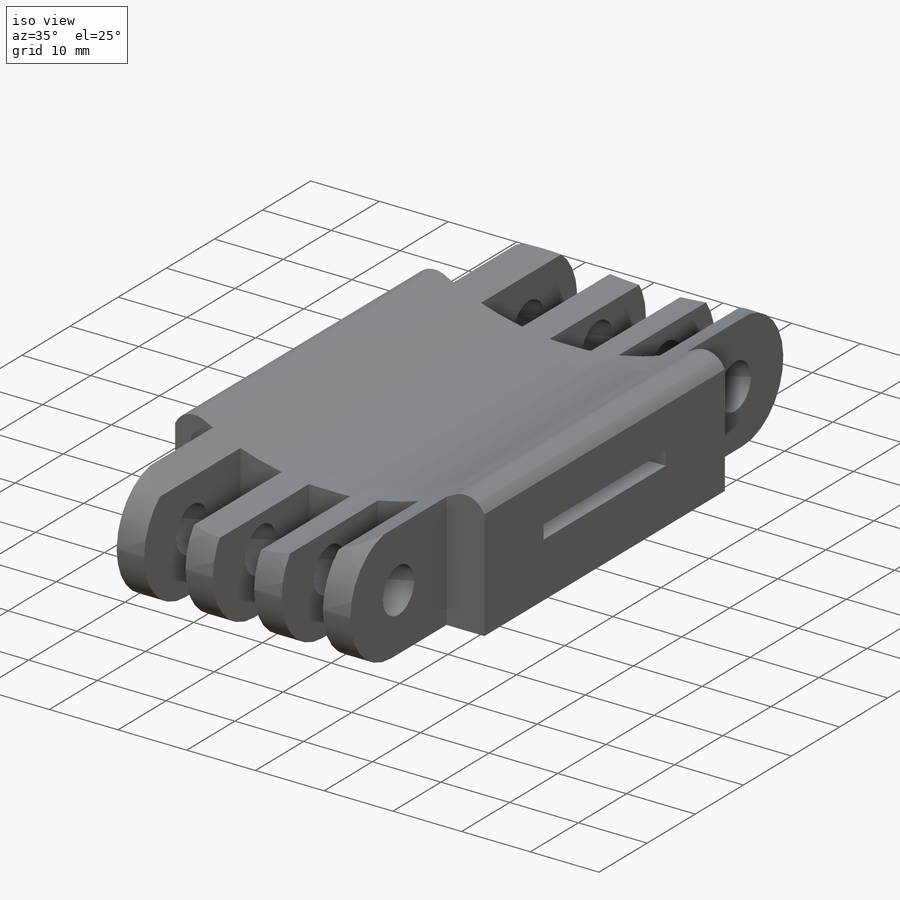
[diagram: iso view]
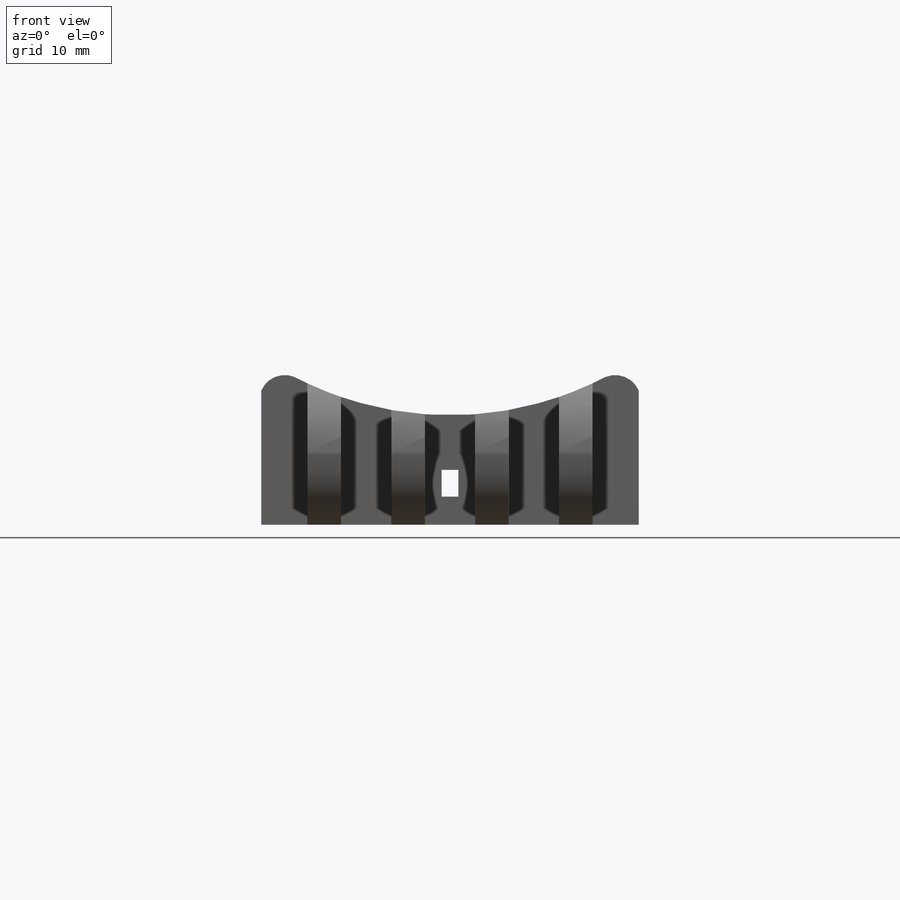
[diagram: front view]
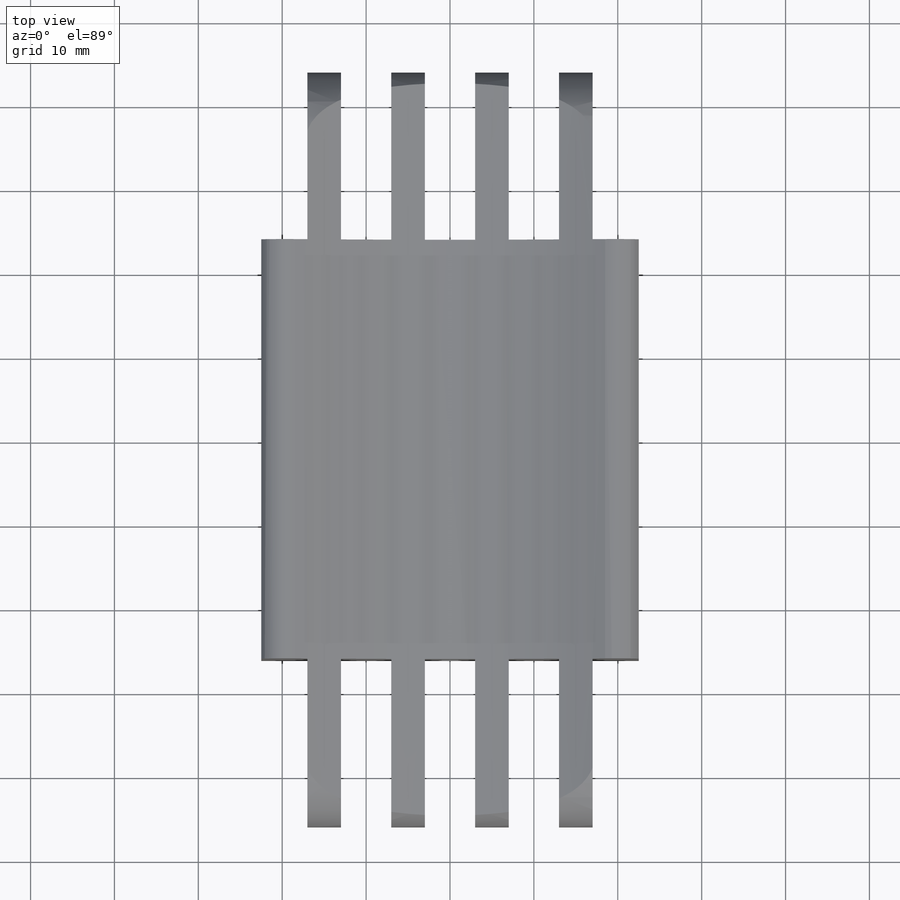
[diagram: top view]
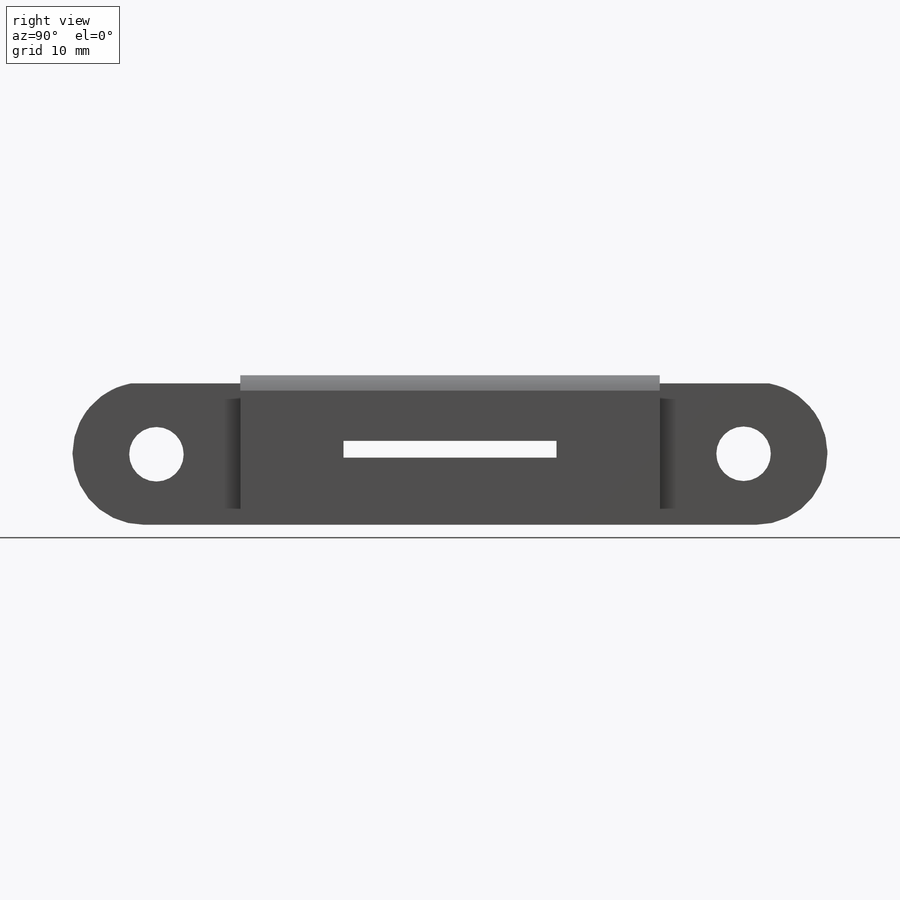
[diagram: right view]
SOLIDWORKS PART (.sldprt)
format: sldprt  version: not decoded by parser v0  size: 422,912 bytes
history: native  units: mm
features: sketch x6, cut_extrude x5, material x1, extrude x1 (+13 scaffold rows collapsed)
feature tree (26):
  scaffold x13  (default folders/planes/origin — collapsed)
  material  "Material <not specified>"
  sketch  "Sketch1"  dims[D1=2.0mm]
  extrude  "Boss-Extrude1"  Depth=20mm
  sketch  "Sketch2"  dims[D1=4.0mm]
  sketch  "Sketch7"
  cut_extrude  "Cut-Extrude21"  Depth=45mm
  cut_extrude  "Cut-Extrude23"  Depth=444mm
  sketch  "Sketch9"  dims[D1=20.0mm]
  cut_extrude  "Cut-Extrude24"  Depth=45mm
  sketch  "Sketch12"  dims[D1=3.2mm]
  cut_extrude  "Cut-Extrude26"  Depth=444mm
  sketch  "Sketch13"  dims[D1=12.7mm]
  cut_extrude  "Cut-Extrude27"  Depth=45mm
decode coverage: 11 of 12 modeling features carry decoded parameters
note: suppression state not decoded; provenance and decode notes live in map.json
